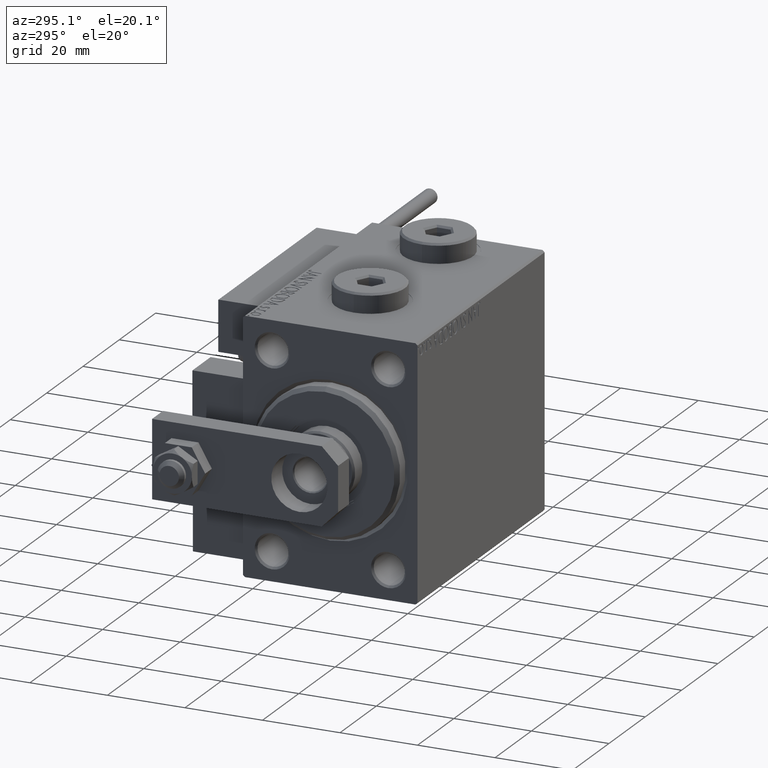
[diagram: clean part render]
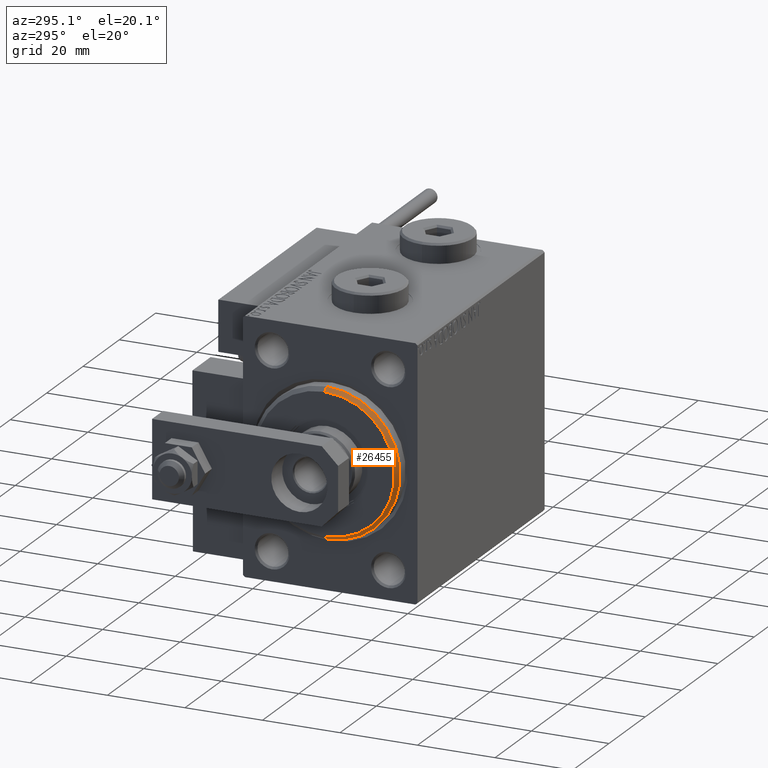
[diagram: same view with one face highlighted and labeled with its STEP entity id]
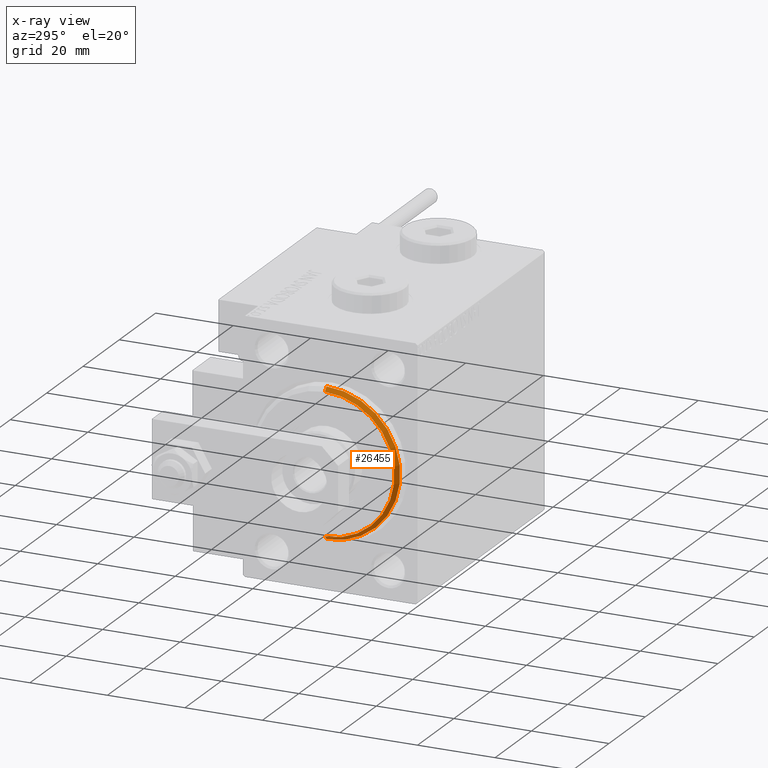
[diagram: x-ray of the same camera — body ghosted, the highlighted face saturated]
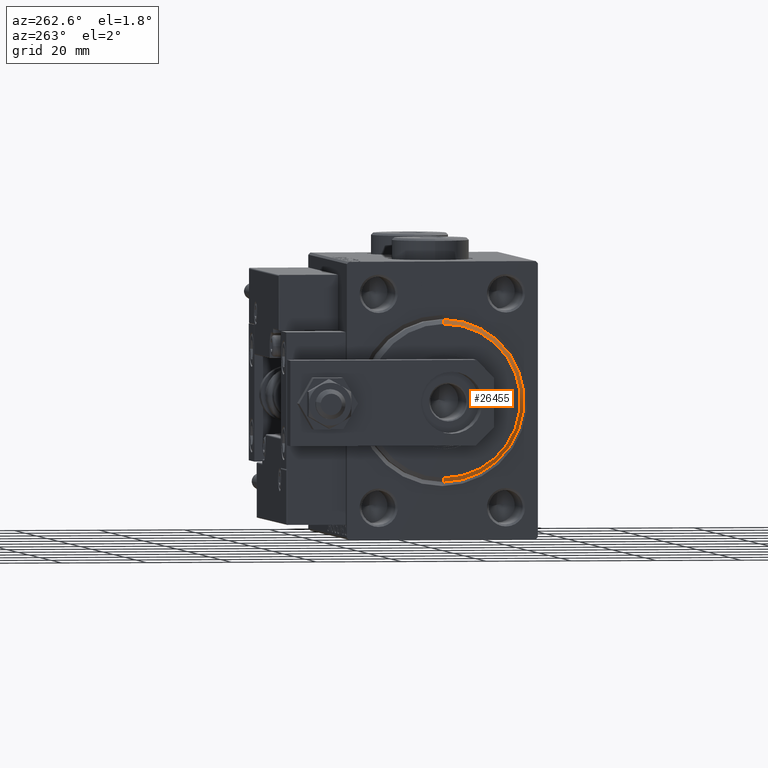
[diagram: same view with one face highlighted and labeled with its STEP entity id]
A machine part, auxiliary view. The second image highlights one B-rep face of the part: STEP entity #26455.
The next image is the same camera in x-ray: the body ghosted, the highlighted face saturated — about 0% of this face is hidden behind the body in this view.
A second angle (auxiliary view) of the same face is appended — the face is thin or edge-on in the first view.
In plain terms, the highlighted conical surface has half-angle 45 deg.
Its self-contained STEP definition (entity closure, byte-faithful):
#276 = DIRECTION ( 'NONE',  ( 0.000000000000000000, 0.000000000000000000, -1.000000000000000000 ) ) ;
#357 = ORIENTED_EDGE ( 'NONE', *, *, #7672, .F. ) ;
#1363 = DIRECTION ( 'NONE',  ( -0.7071067811865487940, 8.659560562354918067E-17, -0.7071067811865463515 ) ) ;
#1416 = CIRCLE ( 'NONE', #31108, 19.00000000000000000 ) ;
#1586 = VECTOR ( 'NONE', #15934, 1000.000000000000000 ) ;
#3181 = AXIS2_PLACEMENT_3D ( 'NONE', #11611, #39527, #23598 ) ;
#4389 = CIRCLE ( 'NONE', #48513, 17.99999999999999645 ) ;
#5728 = CARTESIAN_POINT ( 'NONE',  ( 1.999999999999992228, 2.326828918379970970E-15, -19.00000000000000000 ) ) ;
#6884 = VERTEX_POINT ( 'NONE', #5728 ) ;
#7672 = EDGE_CURVE ( 'NONE', #39643, #6884, #1416, .T. ) ;
#10635 = DIRECTION ( 'NONE',  ( 0.000000000000000000, 0.000000000000000000, -1.000000000000000000 ) ) ;
#11611 = CARTESIAN_POINT ( 'NONE',  ( 3.000000000000000000, 0.000000000000000000, 0.000000000000000000 ) ) ;
#11843 = EDGE_LOOP ( 'NONE', ( #17913, #19379, #357, #22321 ) ) ;
#12495 = CONICAL_SURFACE ( 'NONE', #3181, 17.99999999999999645, 0.7853981633974466137 ) ;
#15934 = DIRECTION ( 'NONE',  ( -0.7071067811865487940, 0.000000000000000000, 0.7071067811865463515 ) ) ;
#15970 = DIRECTION ( 'NONE',  ( 1.000000000000000000, -0.000000000000000000, 0.000000000000000000 ) ) ;
#17312 = LINE ( 'NONE', #50253, #38993 ) ;
#17913 = ORIENTED_EDGE ( 'NONE', *, *, #46782, .F. ) ;
#19379 = ORIENTED_EDGE ( 'NONE', *, *, #42570, .T. ) ;
#19941 = LINE ( 'NONE', #32686, #1586 ) ;
#22321 = ORIENTED_EDGE ( 'NONE', *, *, #32189, .F. ) ;
#22360 = CARTESIAN_POINT ( 'NONE',  ( 1.999999999999992228, 0.000000000000000000, 0.000000000000000000 ) ) ;
#22526 = CARTESIAN_POINT ( 'NONE',  ( 3.000000000000000000, 0.000000000000000000, 17.99999999999999645 ) ) ;
#23338 = FACE_OUTER_BOUND ( 'NONE', #11843, .T. ) ;
#23598 = DIRECTION ( 'NONE',  ( 0.000000000000000000, 0.000000000000000000, 1.000000000000000000 ) ) ;
#26455 = ADVANCED_FACE ( 'NONE', ( #23338 ), #12495, .T. ) ;
#31108 = AXIS2_PLACEMENT_3D ( 'NONE', #22360, #38554, #10635 ) ;
#32189 = EDGE_CURVE ( 'NONE', #44779, #39643, #19941, .T. ) ;
#32686 = CARTESIAN_POINT ( 'NONE',  ( 3.000000000000000000, 0.000000000000000000, 17.99999999999999645 ) ) ;
#32835 = CARTESIAN_POINT ( 'NONE',  ( 3.000000000000000000, 2.265596578422603002E-15, -17.99999999999999645 ) ) ;
#38055 = VERTEX_POINT ( 'NONE', #32835 ) ;
#38554 = DIRECTION ( 'NONE',  ( -1.000000000000000000, 0.000000000000000000, 0.000000000000000000 ) ) ;
#38993 = VECTOR ( 'NONE', #1363, 1000.000000000000000 ) ;
#39527 = DIRECTION ( 'NONE',  ( -1.000000000000000000, 0.000000000000000000, 0.000000000000000000 ) ) ;
#39643 = VERTEX_POINT ( 'NONE', #40741 ) ;
#40741 = CARTESIAN_POINT ( 'NONE',  ( 1.999999999999992228, 0.000000000000000000, 19.00000000000000000 ) ) ;
#42570 = EDGE_CURVE ( 'NONE', #38055, #6884, #17312, .T. ) ;
#44681 = CARTESIAN_POINT ( 'NONE',  ( 3.000000000000000000, 0.000000000000000000, 0.000000000000000000 ) ) ;
#44779 = VERTEX_POINT ( 'NONE', #22526 ) ;
#46782 = EDGE_CURVE ( 'NONE', #38055, #44779, #4389, .T. ) ;
#48513 = AXIS2_PLACEMENT_3D ( 'NONE', #44681, #15970, #276 ) ;
#50253 = CARTESIAN_POINT ( 'NONE',  ( 3.000000000000000000, 2.204364238465235033E-15, -17.99999999999999645 ) ) ;